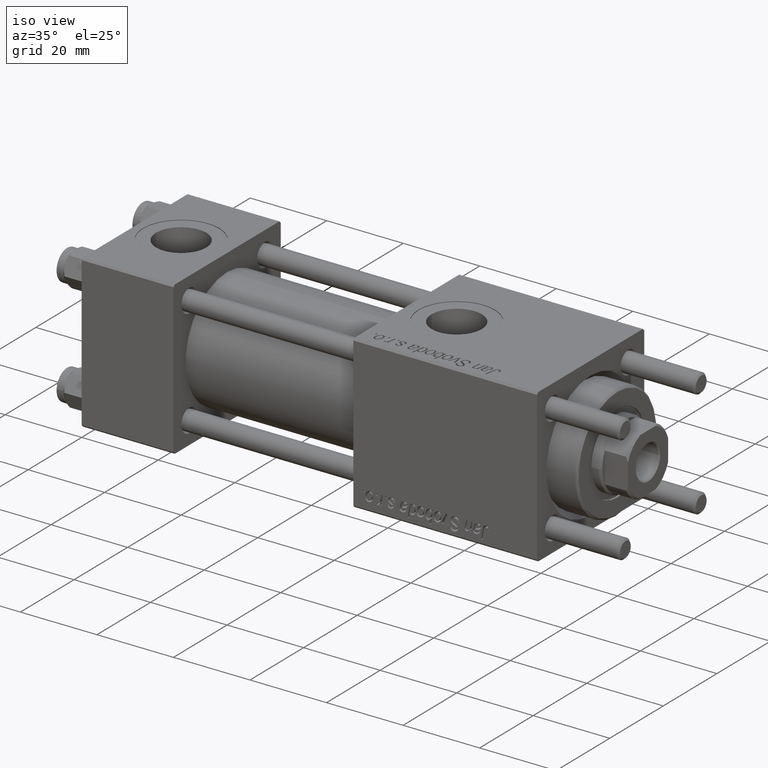
[diagram: clean part render]
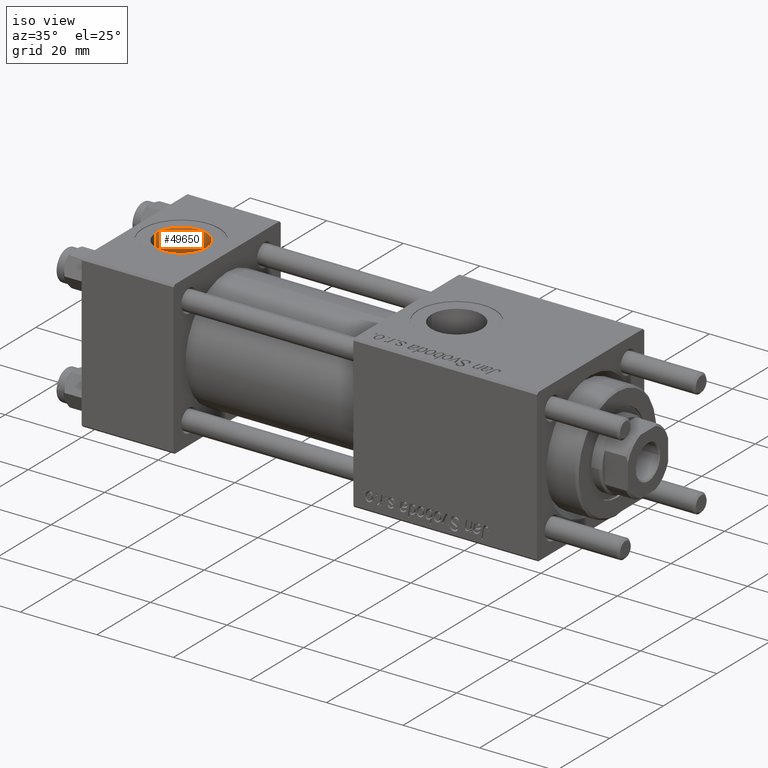
[diagram: same view with one face highlighted and labeled with its STEP entity id]
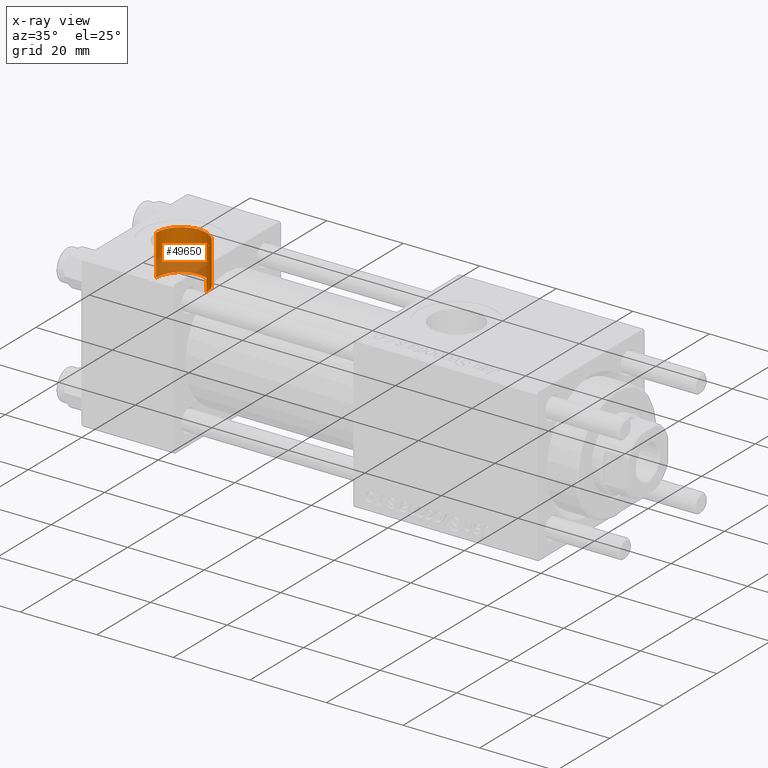
[diagram: x-ray of the same camera — body ghosted, the highlighted face saturated]
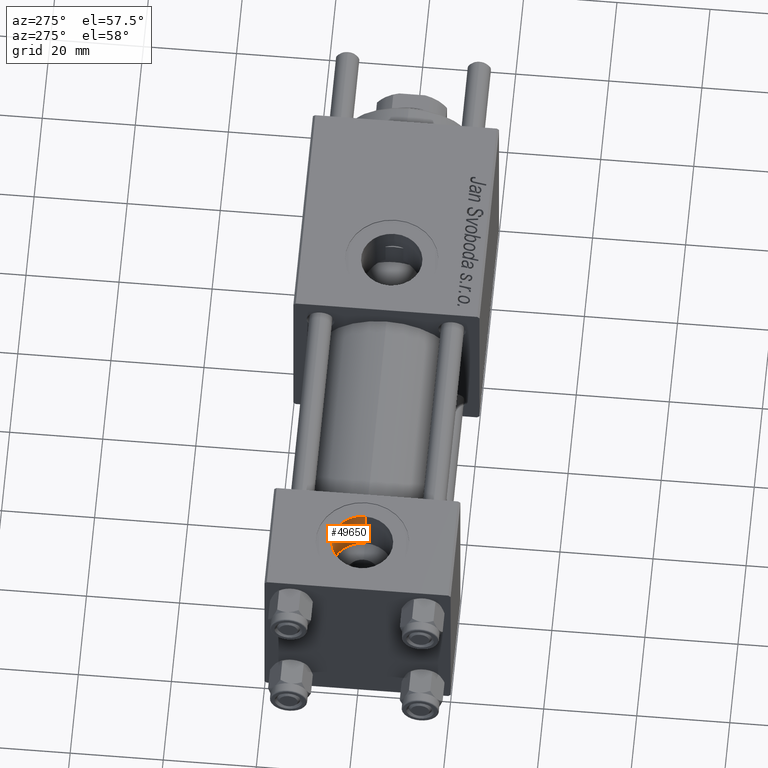
[diagram: same view with one face highlighted and labeled with its STEP entity id]
A machine part, iso view. The second image highlights one B-rep face of the part: STEP entity #49650.
The next image is the same camera in x-ray: the body ghosted, the highlighted face saturated — about 34% of this face is hidden behind the body in this view.
A second angle (auxiliary view) of the same face is appended — the face is thin or edge-on in the first view.
In plain terms, the highlighted cylindrical surface (edge-blend (fillet) strip) has radius 6.58 mm, axis along (0, 0, 1).
Its self-contained STEP definition (entity closure, byte-faithful):
#1164 = CARTESIAN_POINT ( 'NONE',  ( 5.420000000000000817, 8.058175938389596335E-16, 9.165987261146492315 ) ) ;
#1208 = DIRECTION ( 'NONE',  ( 0.000000000000000000, 0.000000000000000000, 1.000000000000000000 ) ) ;
#1623 = VERTEX_POINT ( 'NONE', #1164 ) ;
#1756 = ORIENTED_EDGE ( 'NONE', *, *, #14142, .T. ) ;
#5215 = CARTESIAN_POINT ( 'NONE',  ( 5.420000000000000817, 8.058175938389596335E-16, 19.79999999999999716 ) ) ;
#8064 = DIRECTION ( 'NONE',  ( -0.000000000000000000, -0.000000000000000000, 1.000000000000000000 ) ) ;
#9662 = VERTEX_POINT ( 'NONE', #5215 ) ;
#12371 = CARTESIAN_POINT ( 'NONE',  ( 12.00000000000000000, 1.540743955509788682E-30, 9.199999999999995737 ) ) ;
#12603 = CARTESIAN_POINT ( 'NONE',  ( 12.00000000000000000, 1.540743955509788682E-30, 9.165987261146492315 ) ) ;
#13287 = LINE ( 'NONE', #39099, #53488 ) ;
#14124 = CARTESIAN_POINT ( 'NONE',  ( 12.00000000000000000, 1.540743955509788682E-30, 19.79999999999999716 ) ) ;
#14142 = EDGE_CURVE ( 'NONE', #46398, #9662, #19026, .T. ) ;
#14435 = AXIS2_PLACEMENT_3D ( 'NONE', #14124, #1208, #36189 ) ;
#15805 = CIRCLE ( 'NONE', #41416, 6.579999999999999183 ) ;
#16336 = DIRECTION ( 'NONE',  ( 1.000000000000000000, 0.000000000000000000, 0.000000000000000000 ) ) ;
#19026 = CIRCLE ( 'NONE', #14435, 6.579999999999999183 ) ;
#19739 = ORIENTED_EDGE ( 'NONE', *, *, #48046, .T. ) ;
#20426 = CARTESIAN_POINT ( 'NONE',  ( 18.57999999999999829, 1.540743955509788682E-30, 19.79999999999999716 ) ) ;
#28076 = VERTEX_POINT ( 'NONE', #54955 ) ;
#28127 = LINE ( 'NONE', #45594, #28136 ) ;
#28136 = VECTOR ( 'NONE', #37557, 1000.000000000000000 ) ;
#30393 = ORIENTED_EDGE ( 'NONE', *, *, #39521, .F. ) ;
#30404 = DIRECTION ( 'NONE',  ( 1.000000000000000000, 0.000000000000000000, 0.000000000000000000 ) ) ;
#32901 = EDGE_CURVE ( 'NONE', #1623, #28076, #15805, .T. ) ;
#34571 = AXIS2_PLACEMENT_3D ( 'NONE', #12371, #8064, #30404 ) ;
#35543 = CYLINDRICAL_SURFACE ( 'NONE', #34571, 6.579999999999999183 ) ;
#36189 = DIRECTION ( 'NONE',  ( 1.000000000000000000, 0.000000000000000000, 0.000000000000000000 ) ) ;
#36651 = EDGE_LOOP ( 'NONE', ( #30393, #56135, #19739, #1756 ) ) ;
#37557 = DIRECTION ( 'NONE',  ( -0.000000000000000000, -0.000000000000000000, 1.000000000000000000 ) ) ;
#39099 = CARTESIAN_POINT ( 'NONE',  ( 5.420000000000000817, 8.058175938389596335E-16, 9.199999999999995737 ) ) ;
#39521 = EDGE_CURVE ( 'NONE', #1623, #9662, #13287, .T. ) ;
#39843 = FACE_OUTER_BOUND ( 'NONE', #36651, .T. ) ;
#41416 = AXIS2_PLACEMENT_3D ( 'NONE', #12603, #55604, #16336 ) ;
#45594 = CARTESIAN_POINT ( 'NONE',  ( 18.57999999999999829, 1.540743955509788682E-30, 9.199999999999995737 ) ) ;
#46398 = VERTEX_POINT ( 'NONE', #20426 ) ;
#47964 = DIRECTION ( 'NONE',  ( -0.000000000000000000, -0.000000000000000000, 1.000000000000000000 ) ) ;
#48046 = EDGE_CURVE ( 'NONE', #28076, #46398, #28127, .T. ) ;
#49650 = ADVANCED_FACE ( 'NONE', ( #39843 ), #35543, .F. ) ;
#53488 = VECTOR ( 'NONE', #47964, 1000.000000000000000 ) ;
#54955 = CARTESIAN_POINT ( 'NONE',  ( 18.57999999999999829, 1.540743955509788682E-30, 9.165987261146492315 ) ) ;
#55604 = DIRECTION ( 'NONE',  ( -0.000000000000000000, -0.000000000000000000, -1.000000000000000000 ) ) ;
#56135 = ORIENTED_EDGE ( 'NONE', *, *, #32901, .T. ) ;